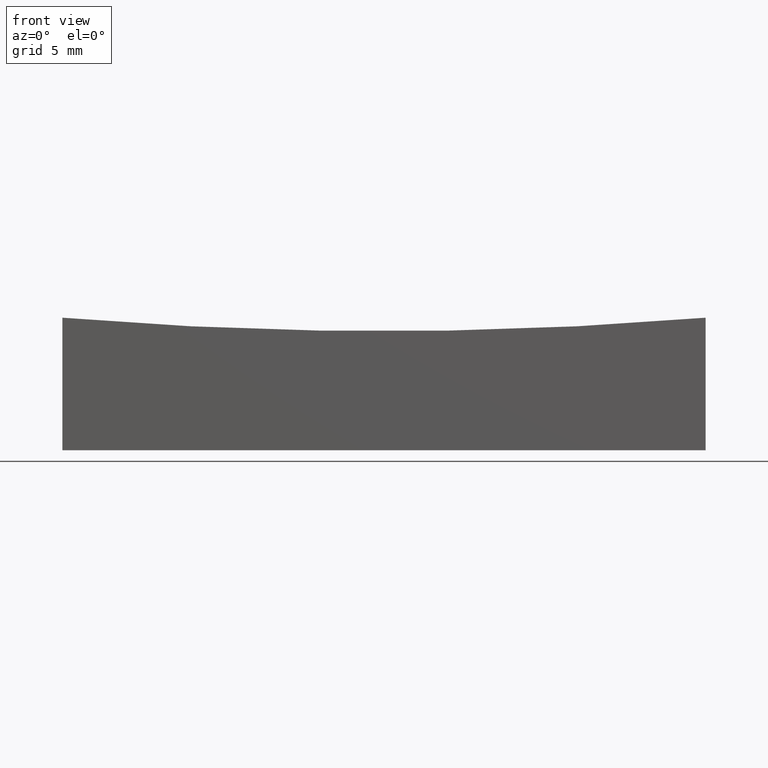
[diagram: clean part render]
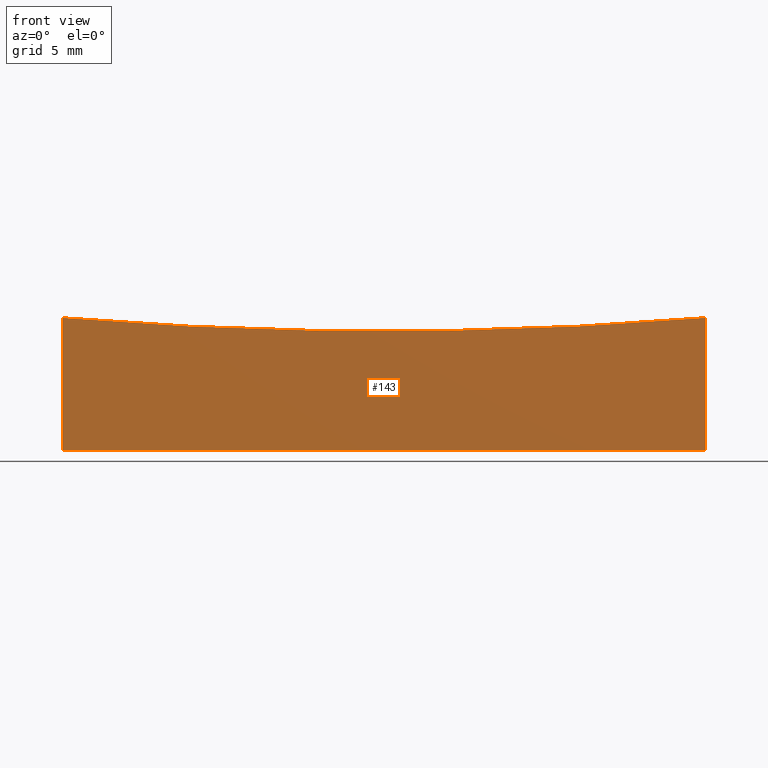
[diagram: same view with one face highlighted and labeled with its STEP entity id]
A machine part, front view. The second image highlights one B-rep face of the part: STEP entity #143.
In plain terms, the highlighted planar face has unit normal (0, 1, 0).
Its self-contained STEP definition (entity closure, byte-faithful):
#10 = ORIENTED_EDGE ( 'NONE', *, *, #212, .T. ) ;
#15 = CARTESIAN_POINT ( 'NONE',  ( -24.99999999999999645, -12.50000000000000000, 0.000000000000000000 ) ) ;
#17 = DIRECTION ( 'NONE',  ( 8.881784197001250746E-15, 0.000000000000000000, 1.000000000000000000 ) ) ;
#24 = ORIENTED_EDGE ( 'NONE', *, *, #203, .F. ) ;
#30 = LINE ( 'NONE', #124, #150 ) ;
#33 = PLANE ( 'NONE',  #136 ) ;
#56 = EDGE_CURVE ( 'NONE', #97, #242, #30, .T. ) ;
#63 = DIRECTION ( 'NONE',  ( -0.000000000000000000, -0.000000000000000000, -1.000000000000000000 ) ) ;
#73 = CARTESIAN_POINT ( 'NONE',  ( 24.99999999999999645, -12.50000000000000000, 10.30492136628696720 ) ) ;
#78 = ORIENTED_EDGE ( 'NONE', *, *, #56, .F. ) ;
#86 = VERTEX_POINT ( 'NONE', #248 ) ;
#90 = FACE_OUTER_BOUND ( 'NONE', #171, .T. ) ;
#91 = DIRECTION ( 'NONE',  ( 1.000000000000000000, 0.000000000000000000, 0.000000000000000000 ) ) ;
#97 = VERTEX_POINT ( 'NONE', #73 ) ;
#99 = VECTOR ( 'NONE', #63, 1000.000000000000000 ) ;
#102 = ORIENTED_EDGE ( 'NONE', *, *, #193, .T. ) ;
#112 = DIRECTION ( 'NONE',  ( 0.000000000000000000, -0.000000000000000000, 1.000000000000000000 ) ) ;
#124 = CARTESIAN_POINT ( 'NONE',  ( 24.99999999999999645, -12.50000000000000000, 15.00000000000000000 ) ) ;
#127 = DIRECTION ( 'NONE',  ( 0.000000000000000000, 1.000000000000000000, 0.000000000000000000 ) ) ;
#132 = DIRECTION ( 'NONE',  ( -0.000000000000000000, -1.000000000000000000, -0.000000000000000000 ) ) ;
#136 = AXIS2_PLACEMENT_3D ( 'NONE', #247, #127, #112 ) ;
#143 = ADVANCED_FACE ( 'NONE', ( #90 ), #33, .F. ) ;
#146 = AXIS2_PLACEMENT_3D ( 'NONE', #165, #132, #17 ) ;
#150 = VECTOR ( 'NONE', #199, 1000.000000000000000 ) ;
#157 = VECTOR ( 'NONE', #91, 1000.000000000000000 ) ;
#158 = VERTEX_POINT ( 'NONE', #179 ) ;
#165 = CARTESIAN_POINT ( 'NONE',  ( 0.000000000000000000, -12.49999999999999645, 309.0000000000000000 ) ) ;
#171 = EDGE_LOOP ( 'NONE', ( #24, #10, #102, #78 ) ) ;
#179 = CARTESIAN_POINT ( 'NONE',  ( -24.99999999999998934, -12.49999999999999645, 10.30492136628702227 ) ) ;
#180 = LINE ( 'NONE', #15, #157 ) ;
#184 = CARTESIAN_POINT ( 'NONE',  ( 24.99999999999999645, -12.50000000000000000, 0.000000000000000000 ) ) ;
#193 = EDGE_CURVE ( 'NONE', #86, #242, #180, .T. ) ;
#199 = DIRECTION ( 'NONE',  ( -0.000000000000000000, -0.000000000000000000, -1.000000000000000000 ) ) ;
#203 = EDGE_CURVE ( 'NONE', #158, #97, #213, .T. ) ;
#209 = LINE ( 'NONE', #234, #99 ) ;
#212 = EDGE_CURVE ( 'NONE', #158, #86, #209, .T. ) ;
#213 = CIRCLE ( 'NONE', #146, 299.7394702070449739 ) ;
#234 = CARTESIAN_POINT ( 'NONE',  ( -24.99999999999999645, -12.50000000000000000, 15.00000000000000000 ) ) ;
#242 = VERTEX_POINT ( 'NONE', #184 ) ;
#247 = CARTESIAN_POINT ( 'NONE',  ( -24.99999999999999645, -12.50000000000000000, 15.00000000000000000 ) ) ;
#248 = CARTESIAN_POINT ( 'NONE',  ( -24.99999999999999645, -12.50000000000000000, 0.000000000000000000 ) ) ;